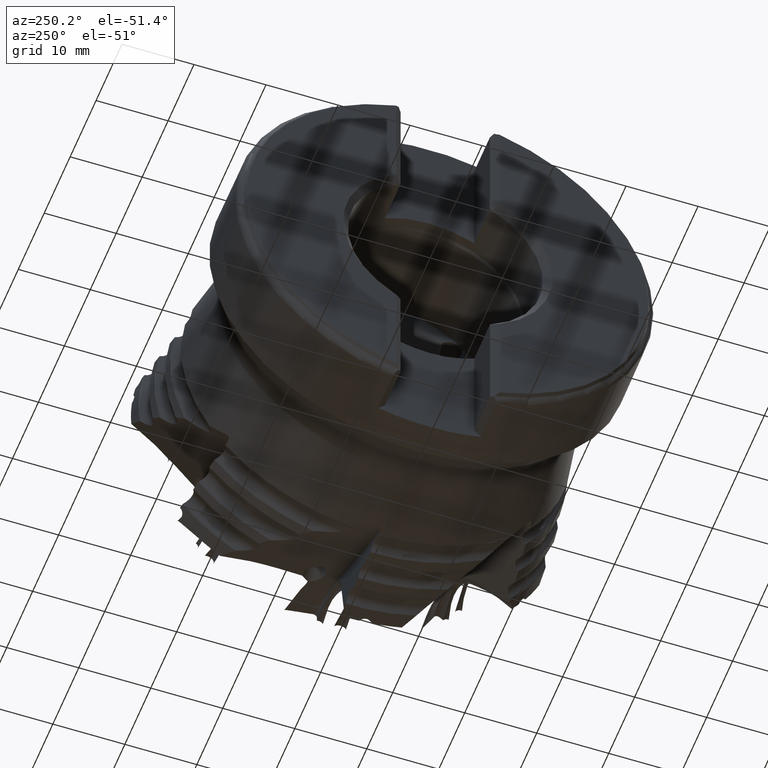
[diagram: clean part render]
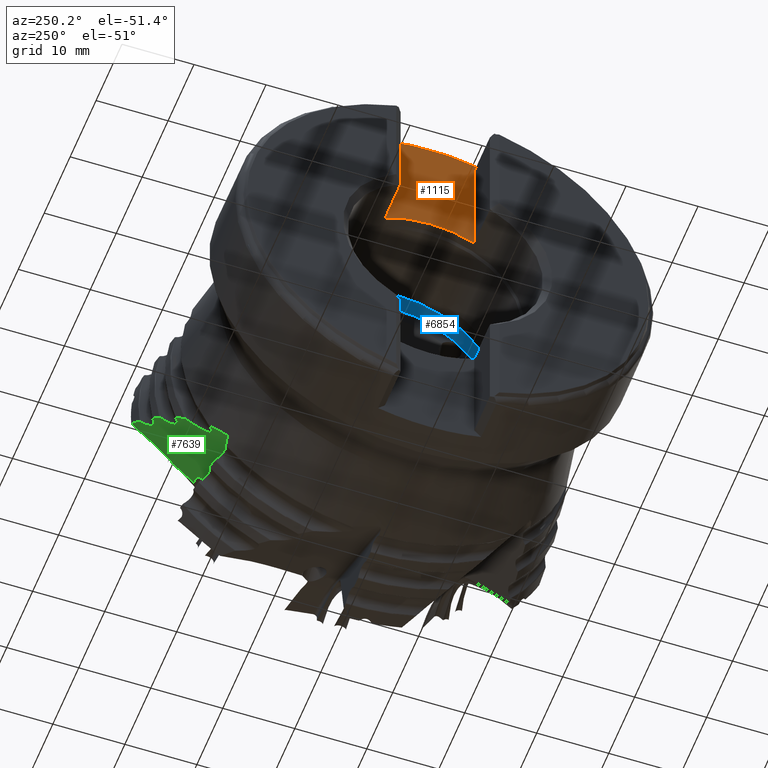
[diagram: same view with three faces highlighted in distinct colors, each labeled with its STEP entity id]
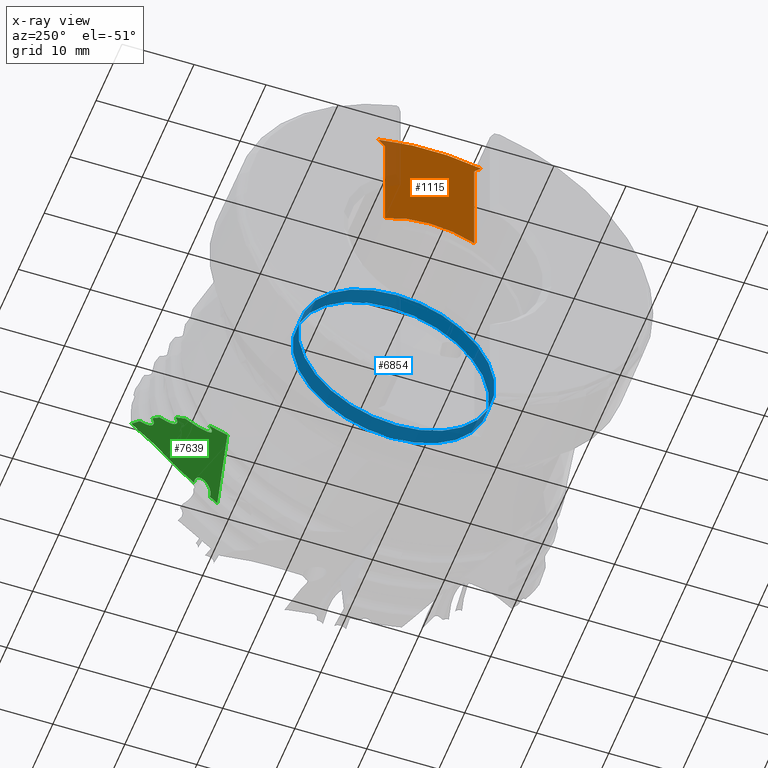
[diagram: x-ray of the same camera — body ghosted, the three highlighted faces saturated]
A machine part, auxiliary view with three faces highlighted in distinct colors.
The next image is the same camera in x-ray (body ghosted, the three faces saturated) — at least one of them is partly hidden behind the body in this view.
Their STEP definitions:

[orange] entity #1115 — the highlighted planar face has unit normal (1, 0, 0).
#80 = VECTOR ( 'NONE', #9487, 1000.000000000000000 ) ;
#189 = DIRECTION ( 'NONE',  ( -1.000000000000000000, -0.0000000000000000000, -0.0000000000000000000 ) ) ;
#214 = ORIENTED_EDGE ( 'NONE', *, *, #3618, .F. ) ;
#217 = CIRCLE ( 'NONE', #1855, 28.99999999999999600 ) ;
#557 = DIRECTION ( 'NONE',  ( 1.000000000000000000, 0.0000000000000000000, 0.0000000000000000000 ) ) ;
#803 = AXIS2_PLACEMENT_3D ( 'NONE', #1734, #9179, #2813 ) ;
#1075 = ORIENTED_EDGE ( 'NONE', *, *, #4829, .T. ) ;
#1115 = ADVANCED_FACE ( 'NONE', ( #4669 ), #11180, .F. ) ;
#1566 = LINE ( 'NONE', #12310, #6889 ) ;
#1734 = CARTESIAN_POINT ( 'NONE',  ( -41.99999999999999300, 0.0000000000000000000, 0.0000000000000000000 ) ) ;
#1855 = AXIS2_PLACEMENT_3D ( 'NONE', #6556, #189, #7601 ) ;
#2058 = EDGE_CURVE ( 'NONE', #8605, #5746, #8242, .T. ) ;
#2373 = CARTESIAN_POINT ( 'NONE',  ( -41.99999999999999300, -24.84998282029209100, -4.652229464850294400 ) ) ;
#2547 = CARTESIAN_POINT ( 'NONE',  ( -41.99999999999999300, -6.200000000000003700, 27.11621402010958100 ) ) ;
#2564 = LINE ( 'NONE', #8421, #80 ) ;
#2584 = VECTOR ( 'NONE', #5458, 1000.000000000000000 ) ;
#2688 = CARTESIAN_POINT ( 'NONE',  ( -41.99999999999999300, 6.199999999999994000, -35.00000000000000000 ) ) ;
#2813 = DIRECTION ( 'NONE',  ( 0.0000000000000000000, 1.776356839400250500E-015, -1.000000000000000000 ) ) ;
#2836 = VERTEX_POINT ( 'NONE', #6629 ) ;
#2889 = CIRCLE ( 'NONE', #803, 13.57499999999999400 ) ;
#3053 = VECTOR ( 'NONE', #13000, 1000.000000000000100 ) ;
#3388 = LINE ( 'NONE', #2373, #3053 ) ;
#3618 = EDGE_CURVE ( 'Kante69', #12735, #8605, #2889, .T. ) ;
#3959 = EDGE_CURVE ( 'NONE', #2836, #5746, #3388, .T. ) ;
#4669 = FACE_OUTER_BOUND ( 'NONE', #6364, .T. ) ;
#4829 = EDGE_CURVE ( 'Kante61', #10415, #2836, #217, .T. ) ;
#4937 = CARTESIAN_POINT ( 'NONE',  ( -41.99999999999999300, -7.162962588931217000, 28.10145844879891200 ) ) ;
#5458 = DIRECTION ( 'NONE',  ( -0.0000000000000000000, -0.0000000000000000000, 1.000000000000000000 ) ) ;
#5620 = ORIENTED_EDGE ( 'NONE', *, *, #3959, .T. ) ;
#5746 = VERTEX_POINT ( 'NONE', #6326 ) ;
#6326 = CARTESIAN_POINT ( 'NONE',  ( -41.99999999999999300, 6.199999999999994000, 27.11621402010955300 ) ) ;
#6364 = EDGE_LOOP ( 'NONE', ( #1075, #5620, #9628, #214, #7596, #7699 ) ) ;
#6556 = CARTESIAN_POINT ( 'NONE',  ( -41.99999999999999300, 0.0000000000000000000, 0.0000000000000000000 ) ) ;
#6629 = CARTESIAN_POINT ( 'NONE',  ( -41.99999999999999300, 7.162962588931238300, 28.10145844879890800 ) ) ;
#6813 = CARTESIAN_POINT ( 'NONE',  ( -41.99999999999999300, 6.199999999999994000, 12.07644918839970500 ) ) ;
#6889 = VECTOR ( 'NONE', #7037, 999.9999999999998900 ) ;
#7037 = DIRECTION ( 'NONE',  ( -0.0000000000000000000, -0.6989738158220552000, 0.7151472609156492900 ) ) ;
#7596 = ORIENTED_EDGE ( 'NONE', *, *, #12382, .T. ) ;
#7601 = DIRECTION ( 'NONE',  ( 0.0000000000000000000, 3.552713678800500900E-015, -1.000000000000000000 ) ) ;
#7699 = ORIENTED_EDGE ( 'NONE', *, *, #11618, .T. ) ;
#8242 = LINE ( 'NONE', #11778, #2584 ) ;
#8421 = CARTESIAN_POINT ( 'NONE',  ( -41.99999999999999300, -6.200000000000003700, -35.00000000000000000 ) ) ;
#8605 = VERTEX_POINT ( 'NONE', #6813 ) ;
#9179 = DIRECTION ( 'NONE',  ( -1.000000000000000000, -0.0000000000000000000, -0.0000000000000000000 ) ) ;
#9487 = DIRECTION ( 'NONE',  ( -0.0000000000000000000, -0.0000000000000000000, 1.000000000000000000 ) ) ;
#9628 = ORIENTED_EDGE ( 'NONE', *, *, #2058, .F. ) ;
#10415 = VERTEX_POINT ( 'NONE', #4937 ) ;
#11180 = PLANE ( 'NONE',  #11707 ) ;
#11618 = EDGE_CURVE ( 'NONE', #12994, #10415, #1566, .T. ) ;
#11687 = CARTESIAN_POINT ( 'NONE',  ( -41.99999999999999300, -6.200000000000003700, 12.07644918839970100 ) ) ;
#11707 = AXIS2_PLACEMENT_3D ( 'NONE', #2688, #557, #12232 ) ;
#11778 = CARTESIAN_POINT ( 'NONE',  ( -41.99999999999999300, 6.199999999999994000, -35.00000000000000000 ) ) ;
#12232 = DIRECTION ( 'NONE',  ( 0.0000000000000000000, 0.0000000000000000000, -1.000000000000000000 ) ) ;
#12310 = CARTESIAN_POINT ( 'NONE',  ( -41.99999999999999300, 30.90818132083214900, -10.85060766682807700 ) ) ;
#12382 = EDGE_CURVE ( 'NONE', #12735, #12994, #2564, .T. ) ;
#12735 = VERTEX_POINT ( 'NONE', #11687 ) ;
#12994 = VERTEX_POINT ( 'NONE', #2547 ) ;
#13000 = DIRECTION ( 'NONE',  ( 0.0000000000000000000, -0.6989738158220575300, -0.7151472609156468400 ) ) ;

[blue] entity #6854 — the highlighted cylindrical surface (bore or boss wall) has radius 13.65 mm, axis along (1, -0, -0).
#1432 = DIRECTION ( 'NONE',  ( 1.000000000000000000, -0.0000000000000000000, -0.0000000000000000000 ) ) ;
#1989 = FACE_OUTER_BOUND ( 'NONE', #11293, .T. ) ;
#3159 = CARTESIAN_POINT ( 'NONE',  ( -29.22115756940395000, 0.0000000000000000000, -13.64999999999999700 ) ) ;
#4500 = CYLINDRICAL_SURFACE ( 'NONE', #12018, 13.64999999999999700 ) ;
#4827 = FACE_OUTER_BOUND ( 'NONE', #6036, .T. ) ;
#4864 = CIRCLE ( 'NONE', #6845, 13.64999999999999700 ) ;
#4939 = EDGE_CURVE ( 'NONE', #10836, #10836, #4864, .T. ) ;
#4994 = CIRCLE ( 'NONE', #8670, 13.64999999999999700 ) ;
#5303 = CARTESIAN_POINT ( 'NONE',  ( -26.99999999999999600, 0.0000000000000000000, -13.64999999999999700 ) ) ;
#6036 = EDGE_LOOP ( 'NONE', ( #6518 ) ) ;
#6213 = DIRECTION ( 'NONE',  ( 1.000000000000000000, -0.0000000000000000000, -0.0000000000000000000 ) ) ;
#6235 = DIRECTION ( 'NONE',  ( 1.000000000000000000, -0.0000000000000000000, -0.0000000000000000000 ) ) ;
#6518 = ORIENTED_EDGE ( 'NONE', *, *, #7322, .T. ) ;
#6845 = AXIS2_PLACEMENT_3D ( 'NONE', #7779, #1432, #8874 ) ;
#6854 = ADVANCED_FACE ( 'NONE', ( #1989, #4827 ), #4500, .F. ) ;
#7322 = EDGE_CURVE ( 'NONE', #13332, #13332, #4994, .T. ) ;
#7779 = CARTESIAN_POINT ( 'NONE',  ( -29.22115756940395000, 0.0000000000000000000, 0.0000000000000000000 ) ) ;
#8670 = AXIS2_PLACEMENT_3D ( 'NONE', #12541, #6213, #13610 ) ;
#8874 = DIRECTION ( 'NONE',  ( 0.0000000000000000000, 0.0000000000000000000, -1.000000000000000000 ) ) ;
#10836 = VERTEX_POINT ( 'NONE', #3159 ) ;
#11293 = EDGE_LOOP ( 'NONE', ( #13644 ) ) ;
#12018 = AXIS2_PLACEMENT_3D ( 'NONE', #12556, #6235, #13627 ) ;
#12541 = CARTESIAN_POINT ( 'NONE',  ( -26.99999999999999600, 0.0000000000000000000, 0.0000000000000000000 ) ) ;
#12556 = CARTESIAN_POINT ( 'NONE',  ( 0.0000000000000000000, 0.0000000000000000000, 0.0000000000000000000 ) ) ;
#13332 = VERTEX_POINT ( 'NONE', #5303 ) ;
#13610 = DIRECTION ( 'NONE',  ( 0.0000000000000000000, 0.0000000000000000000, -1.000000000000000000 ) ) ;
#13627 = DIRECTION ( 'NONE',  ( 0.0000000000000000000, 0.0000000000000000000, -1.000000000000000000 ) ) ;
#13644 = ORIENTED_EDGE ( 'NONE', *, *, #4939, .F. ) ;

[green] entity #7639 — the highlighted planar face has unit normal (-0.3701, -0.6246, 0.6877).
#130 = CARTESIAN_POINT ( 'NONE',  ( -10.86009553787052800, 28.43497350777445500, -3.697997164315958200 ) ) ;
#140 = EDGE_CURVE ( 'NONE', #13264, #9629, #8511, .T. ) ;
#202 = ORIENTED_EDGE ( 'NONE', *, *, #140, .T. ) ;
#345 = CARTESIAN_POINT ( 'NONE',  ( -21.27273888934624700, 23.07157633735308600, -14.17396525253552800 ) ) ;
#511 = VECTOR ( 'NONE', #6868, 1000.000000000000000 ) ;
#535 = CARTESIAN_POINT ( 'NONE',  ( -14.74560819839790500, 27.21953894276878600, -6.893257324704725500 ) ) ;
#590 = CARTESIAN_POINT ( 'NONE',  ( -15.56343661477954900, 26.12395101056180700, -8.328574500846881900 ) ) ;
#595 = CARTESIAN_POINT ( 'NONE',  ( -10.16009508420915900, 19.10421677146630200, -11.79657905307113600 ) ) ;
#738 = VERTEX_POINT ( 'NONE', #3922 ) ;
#747 = CARTESIAN_POINT ( 'NONE',  ( -8.070730014023023800, 22.87436854218695400, -7.247531544520118300 ) ) ;
#773 = CARTESIAN_POINT ( 'NONE',  ( -19.24391201882954800, 23.70126172519837500, -12.51005631671221300 ) ) ;
#814 = CARTESIAN_POINT ( 'NONE',  ( -20.70381349785103700, 22.55136495840512000, -14.34027885369560500 ) ) ;
#828 =( BOUNDED_CURVE ( )  B_SPLINE_CURVE ( 3, ( #10256, #13422, #5971, #3909 ),
 .UNSPECIFIED., .F., .T. ) 
 B_SPLINE_CURVE_WITH_KNOTS ( ( 4, 4 ),
 ( 3.507895866193907700, 3.533637796000468300 ),
 .UNSPECIFIED. ) 
 CURVE ( )  GEOMETRIC_REPRESENTATION_ITEM ( )  RATIONAL_B_SPLINE_CURVE ( ( 1.000000000000000000, 0.9999447801831433700, 0.9999447801831433700, 1.000000000000000000 ) ) 
 REPRESENTATION_ITEM ( '' )  );
#1189 = CARTESIAN_POINT ( 'NONE',  ( -11.31691369532756000, 27.93721658735297100, -4.395988764565263600 ) ) ;
#1272 = CARTESIAN_POINT ( 'NONE',  ( -14.52432852026480600, 27.64114408707765600, -6.391207190147924600 ) ) ;
#1352 = DIRECTION ( 'NONE',  ( -0.9289711258367762100, 0.2444033877831371700, -0.2779921426977355300 ) ) ;
#1402 = CARTESIAN_POINT ( 'NONE',  ( -21.23225956640233400, 23.10124906513536300, -14.12522614078787200 ) ) ;
#1439 = EDGE_CURVE ( 'NONE', #738, #9205, #11216, .T. ) ;
#1508 = CARTESIAN_POINT ( 'NONE',  ( -10.67063467501735200, 28.83810332442495600, -3.229854049520093800 ) ) ;
#1554 = LINE ( 'NONE', #7718, #12512 ) ;
#1567 = CARTESIAN_POINT ( 'NONE',  ( -17.72775898459883200, 26.07040663055268200, -9.542087830566844200 ) ) ;
#1586 = CARTESIAN_POINT ( 'NONE',  ( -18.64336868488005500, 25.39358395131935400, -10.64965883775913900 ) ) ;
#1587 = B_SPLINE_CURVE_WITH_KNOTS ( 'NONE', 3,
 ( #2202, #5442, #130, #7549, #1189, #8630, #2249, #9702, #3328, #10740, #4400, #11802, #5481, #12877 ),
 .UNSPECIFIED., .F., .F.,
 ( 4, 2, 2, 2, 2, 2, 4 ),
 ( 8.157132255941114400E-007, 0.0009639929585721287900, 0.001927170203918663600, 0.002408758826591934200, 0.002890347449265205000, 0.003371936071938475900, 0.003853524694611746700 ),
 .UNSPECIFIED. ) ;
#1640 = CARTESIAN_POINT ( 'NONE',  ( -15.91063262564948400, 25.92368548708107300, -8.697347377296090100 ) ) ;
#1643 = CARTESIAN_POINT ( 'NONE',  ( -10.17147283110602300, 20.61869377130826200, -10.42706945423603800 ) ) ;
#1746 = CARTESIAN_POINT ( 'NONE',  ( -8.700061548274991500, 28.36712235250801900, -2.597058197102136900 ) ) ;
#1784 = VERTEX_POINT ( 'NONE', #1508 ) ;
#1815 = CARTESIAN_POINT ( 'NONE',  ( -19.60173341473347400, 23.12807853410225400, -13.22327742192166900 ) ) ;
#1864 = CARTESIAN_POINT ( 'NONE',  ( -20.85260339599461300, 22.66344033004023800, -14.31855972541741700 ) ) ;
#2128 = CARTESIAN_POINT ( 'NONE',  ( -14.67063467501735700, 27.46324937614622300, -6.631537573126843600 ) ) ;
#2202 = CARTESIAN_POINT ( 'NONE',  ( -10.67063467501735200, 28.83810332442495600, -3.229854049520093800 ) ) ;
#2249 = CARTESIAN_POINT ( 'NONE',  ( -11.74847941762970600, 27.71548341185816300, -4.829670506608110300 ) ) ;
#2459 = CARTESIAN_POINT ( 'NONE',  ( -21.19289753952197200, 23.10554418592550300, -14.10013942581642600 ) ) ;
#2498 = CARTESIAN_POINT ( 'NONE',  ( -21.79621176707710000, 22.41132811741158900, -15.05542611816287900 ) ) ;
#2509 = CARTESIAN_POINT ( 'NONE',  ( -8.036276616653669400, 18.28832190612817100, -11.39459676204624300 ) ) ;
#2559 = CARTESIAN_POINT ( 'NONE',  ( -9.323391583254798200, 29.29571790728401100, -2.089081692416955100 ) ) ;
#2658 = CARTESIAN_POINT ( 'NONE',  ( -18.56842842501214700, 25.52451941887289500, -10.49039301135303300 ) ) ;
#2720 = CARTESIAN_POINT ( 'NONE',  ( -16.27551109253209900, 25.84694613383243600, -8.963435692654034200 ) ) ;
#2721 = EDGE_CURVE ( 'NONE', #1784, #4366, #1587, .T. ) ;
#2722 = CARTESIAN_POINT ( 'NONE',  ( -13.17006851726025700, 28.10992487669671300, -5.236515688258121400 ) ) ;
#2723 = CARTESIAN_POINT ( 'NONE',  ( -8.052736960071317900, 20.47933667746171700, -9.413308329905051500 ) ) ;
#2772 = DIRECTION ( 'NONE',  ( 0.0000000000000000000, -0.7402231728078497700, -0.6723612529275315700 ) ) ;
#2820 = CARTESIAN_POINT ( 'NONE',  ( -8.698195910180126900, 27.28957385523242300, -3.574815461507758800 ) ) ;
#2850 = CARTESIAN_POINT ( 'NONE',  ( -18.84847627269794000, 24.63252867608981200, -11.45133499948023600 ) ) ;
#2855 =( BOUNDED_CURVE ( )  B_SPLINE_CURVE ( 3, ( #13295, #12218, #595, #8012, #1643, #9096, #2723 ),
 .UNSPECIFIED., .F., .T. ) 
 B_SPLINE_CURVE_WITH_KNOTS ( ( 4, 3, 4 ),
 ( 4.616353537245133900, 6.378079687763048800, 8.139805838280963700 ),
 .UNSPECIFIED. ) 
 CURVE ( )  GEOMETRIC_REPRESENTATION_ITEM ( )  RATIONAL_B_SPLINE_CURVE ( ( 1.000000000000000000, 0.7576571342113944700, 0.7576571342113944700, 1.000000000000000000, 0.7576571342113944700, 0.7576571342113944700, 1.000000000000000000 ) ) 
 REPRESENTATION_ITEM ( '' )  );
#2905 = CARTESIAN_POINT ( 'NONE',  ( -19.81717244961425800, 22.86612958274759300, -13.57716472714907100 ) ) ;
#2924 = CARTESIAN_POINT ( 'NONE',  ( -8.025082402013897100, 16.79827464484692000, -12.74201506371445400 ) ) ;
#2950 = CARTESIAN_POINT ( 'NONE',  ( -21.00557862382034500, 22.84160768961173500, -14.23906038801179200 ) ) ;
#3328 = CARTESIAN_POINT ( 'NONE',  ( -12.13840743047699400, 27.63397997548191000, -5.113568267649371900 ) ) ;
#3345 = LINE ( 'NONE', #5818, #511 ) ;
#3433 = B_SPLINE_CURVE_WITH_KNOTS ( 'NONE', 3,
 ( #7960, #535, #4809, #12214, #5895, #13288, #6936, #590, #8006, #1640, #9092, #2720, #10137, #3783, #11210, #4856, #12258, #5941, #13346, #6978 ),
 .UNSPECIFIED., .F., .F.,
 ( 4, 2, 2, 2, 2, 2, 2, 2, 2, 4 ),
 ( 9.611235609117997500E-007, 0.001081459051526843900, 0.001621708015509808000, 0.002161956979492773800, 0.002702205943475737300, 0.003242454907458700300, 0.003512579389450185700, 0.003782703871441671500, 0.004052828353433156500, 0.004322952835424642400 ),
 .UNSPECIFIED. ) ;
#3462 = ORIENTED_EDGE ( 'NONE', *, *, #7164, .T. ) ;
#3464 = EDGE_CURVE ( 'Kante72', #13442, #8038, #8836, .T. ) ;
#3484 = CARTESIAN_POINT ( 'NONE',  ( -21.11411155307469700, 23.03418228389732600, -14.12255498165851700 ) ) ;
#3528 = CARTESIAN_POINT ( 'NONE',  ( -21.16091687335874000, 23.09259153931584400, -14.09469202644687900 ) ) ;
#3540 = LINE ( 'NONE', #2924, #8878 ) ;
#3597 = CARTESIAN_POINT ( 'NONE',  ( -17.23996424805477900, 26.33984221772702800, -9.034813440801734400 ) ) ;
#3633 = CARTESIAN_POINT ( 'NONE',  ( -18.67063467501743900, 25.29617975315047900, -10.75280830125341300 ) ) ;
#3783 = CARTESIAN_POINT ( 'NONE',  ( -16.52754348558893600, 25.87107696033849200, -9.077165554114433400 ) ) ;
#3785 = CARTESIAN_POINT ( 'NONE',  ( -13.11411155307485800, 28.06410165123183400, -5.248020889490465600 ) ) ;
#3890 = CARTESIAN_POINT ( 'NONE',  ( -8.690551606012990100, 26.47972320350310900, -4.306306605894899800 ) ) ;
#3909 = CARTESIAN_POINT ( 'NONE',  ( -13.29360231539657800, 28.11027717039311800, -5.302683835198029000 ) ) ;
#3922 = CARTESIAN_POINT ( 'NONE',  ( -17.29360231540805900, 26.31604722645916900, -9.085295949328980200 ) ) ;
#3962 = CARTESIAN_POINT ( 'NONE',  ( -20.00374536170919600, 22.68651987115085300, -13.84072518675584000 ) ) ;
#4003 = CARTESIAN_POINT ( 'NONE',  ( -21.11411155307469700, 23.03418228389732600, -14.12255498165851700 ) ) ;
#4011 = B_SPLINE_CURVE_WITH_KNOTS ( 'NONE', 3,
 ( #5898, #12217, #9094, #2722, #10141, #3785 ),
 .UNSPECIFIED., .F., .F.,
 ( 4, 2, 4 ),
 ( 2.714610205043199900E-007, 0.0001070338763430733600, 0.0002137962916656423900 ),
 .UNSPECIFIED. ) ;
#4222 = EDGE_CURVE ( 'NONE', #9193, #9693, #828, .T. ) ;
#4277 = CARTESIAN_POINT ( 'NONE',  ( -14.64175207271855700, 27.53589354651625600, -6.550008106155745600 ) ) ;
#4366 = VERTEX_POINT ( 'NONE', #12013 ) ;
#4400 = CARTESIAN_POINT ( 'NONE',  ( -12.58929686865636700, 27.69605752780815800, -5.299858758342156600 ) ) ;
#4403 = VERTEX_POINT ( 'NONE', #13079 ) ;
#4452 = ORIENTED_EDGE ( 'NONE', *, *, #1439, .T. ) ;
#4476 =( BOUNDED_CURVE ( )  B_SPLINE_CURVE ( 3, ( #5773, #12092, #1567, #9015 ),
 .UNSPECIFIED., .F., .F. ) 
 B_SPLINE_CURVE_WITH_KNOTS ( ( 4, 4 ),
 ( 3.408369816640021400, 3.442400909766030200 ),
 .UNSPECIFIED. ) 
 CURVE ( )  GEOMETRIC_REPRESENTATION_ITEM ( )  RATIONAL_B_SPLINE_CURVE ( ( 1.000000000000000000, 0.9999034927202243800, 0.9999034927202243800, 1.000000000000000000 ) ) 
 REPRESENTATION_ITEM ( '' )  );
#4505 = CARTESIAN_POINT ( 'NONE',  ( -22.19403262101808100, 21.74335254381649600, -15.87627770097361000 ) ) ;
#4530 = CARTESIAN_POINT ( 'NONE',  ( -18.67063467501743900, 25.29617975315047900, -10.75280830125341300 ) ) ;
#4562 = CARTESIAN_POINT ( 'NONE',  ( -21.28369750942650300, 23.05967928804899000, -14.19066973752642000 ) ) ;
#4610 = CARTESIAN_POINT ( 'NONE',  ( -21.12341982389760600, 23.05205268485224600, -14.11133277816373000 ) ) ;
#4629 = CARTESIAN_POINT ( 'NONE',  ( -17.29360231540805900, 26.31604722645916900, -9.085295949328980200 ) ) ;
#4671 = CARTESIAN_POINT ( 'NONE',  ( -17.17023855270592100, 26.32647808237528900, -9.009424742748724000 ) ) ;
#4809 = CARTESIAN_POINT ( 'NONE',  ( -14.84945598793205700, 26.99307615782684900, -7.154851308354174000 ) ) ;
#4856 = CARTESIAN_POINT ( 'NONE',  ( -16.78135653003527500, 25.97463293141810700, -9.119710160544530100 ) ) ;
#4898 = CARTESIAN_POINT ( 'NONE',  ( -10.64092193515466500, 28.89901744779541900, -3.158532451245323400 ) ) ;
#4961 = CARTESIAN_POINT ( 'NONE',  ( -8.621314371711012100, 25.65933937530186500, -5.014214831566800300 ) ) ;
#5040 = CARTESIAN_POINT ( 'NONE',  ( -20.22636006282169800, 22.53989280814520100, -14.09372511762007300 ) ) ;
#5313 = CARTESIAN_POINT ( 'NONE',  ( -8.070730014023023800, 22.87436854218695400, -7.247531544520118300 ) ) ;
#5351 = ORIENTED_EDGE ( 'NONE', *, *, #10903, .T. ) ;
#5364 = CARTESIAN_POINT ( 'NONE',  ( -14.56444899509330400, 27.62484350519884300, -6.427606944284086400 ) ) ;
#5442 = CARTESIAN_POINT ( 'NONE',  ( -10.74938148570689100, 28.62636230702620200, -3.464566118048816500 ) ) ;
#5481 = CARTESIAN_POINT ( 'NONE',  ( -13.00924647846792800, 27.94746367601450000, -5.297525473715932500 ) ) ;
#5553 = ORIENTED_EDGE ( 'NONE', *, *, #13112, .T. ) ;
#5599 = B_SPLINE_CURVE_WITH_KNOTS ( 'NONE', 3,
 ( #7045, #13403, #1746, #9194, #2820, #10238, #3890, #11302, #4961, #12374, #6040, #13444, #7083, #747 ),
 .UNSPECIFIED., .F., .F.,
 ( 4, 2, 2, 2, 2, 2, 4 ),
 ( 0.0004838159047236676300, 0.002665281871346980100, 0.003756014854658636600, 0.004846747837970292300, 0.005937480821281948900, 0.007028213804593604600, 0.009209679771216916800 ),
 .UNSPECIFIED. ) ;
#5757 = CARTESIAN_POINT ( 'NONE',  ( -17.12490893987176200, 26.29287624373854000, -9.015548819479199900 ) ) ;
#5773 = CARTESIAN_POINT ( 'NONE',  ( -18.52432852026481000, 25.55443865050343200, -10.43948133149115500 ) ) ;
#5818 = CARTESIAN_POINT ( 'NONE',  ( -8.025082402013897100, 16.79827464484692000, -12.74201506371445400 ) ) ;
#5895 = CARTESIAN_POINT ( 'NONE',  ( -15.11776855462621100, 26.57635931741260600, -7.677775245636832200 ) ) ;
#5898 = CARTESIAN_POINT ( 'NONE',  ( -13.29360231539657800, 28.11027717039311800, -5.302683835198029000 ) ) ;
#5941 = CARTESIAN_POINT ( 'NONE',  ( -16.99942955219714200, 26.14482891474649800, -9.082488222524121500 ) ) ;
#5971 = CARTESIAN_POINT ( 'NONE',  ( -13.71708511945809100, 27.95881922214270800, -5.668182643566943600 ) ) ;
#5974 = CARTESIAN_POINT ( 'NONE',  ( -10.56275272004776900, 28.96844454777475500, -3.053398167308839300 ) ) ;
#6040 = CARTESIAN_POINT ( 'NONE',  ( -8.481769296413153500, 24.82788413226170500, -5.694338508493749500 ) ) ;
#6117 = CARTESIAN_POINT ( 'NONE',  ( -20.42058900137529800, 22.49113029747902500, -14.24255475306749800 ) ) ;
#6272 = FACE_OUTER_BOUND ( 'NONE', #10666, .T. ) ;
#6327 = B_SPLINE_CURVE_WITH_KNOTS ( 'NONE', 3,
 ( #11965, #4562, #345, #7752, #1402, #8840, #2459, #9903, #3528, #10948, #4610, #12014 ),
 .UNSPECIFIED., .F., .F.,
 ( 4, 2, 2, 2, 2, 4 ),
 ( -0.001361330180132833600, -0.001293126061825733700, -0.001224921943518633800, -0.001190819884365087100, -0.001156717825211540600, -0.001088513706904446600 ),
 .UNSPECIFIED. ) ;
#6386 = CARTESIAN_POINT ( 'NONE',  ( -8.028402720822269200, 17.24023793626150400, -12.34235698373820800 ) ) ;
#6474 = ORIENTED_EDGE ( 'NONE', *, *, #8047, .T. ) ;
#6599 = EDGE_CURVE ( 'NONE', #13218, #12024, #8114, .T. ) ;
#6634 = EDGE_CURVE ( 'NONE', #12682, #11077, #3345, .T. ) ;
#6868 = DIRECTION ( 'NONE',  ( 0.005572156574990965400, -0.7417024696397469500, -0.6707058950101780800 ) ) ;
#6898 = PLANE ( 'NONE',  #9117 ) ;
#6936 = CARTESIAN_POINT ( 'NONE',  ( -15.36728484291172900, 26.29161519433576500, -8.070708914131524000 ) ) ;
#6966 = CARTESIAN_POINT ( 'NONE',  ( -10.67063467501735200, 28.83810332442495600, -3.229854049520093800 ) ) ;
#6978 = CARTESIAN_POINT ( 'NONE',  ( -17.11411155307474600, 26.27907765684992800, -9.022271033870669800 ) ) ;
#7045 = CARTESIAN_POINT ( 'NONE',  ( -8.693566860730255600, 29.44242002387760600, -1.616845728440530200 ) ) ;
#7083 = CARTESIAN_POINT ( 'NONE',  ( -8.181294415081328700, 23.43143318153255400, -6.801045058530463400 ) ) ;
#7106 = CARTESIAN_POINT ( 'NONE',  ( -19.09792562226934700, 24.00461079283119800, -12.15594503714469400 ) ) ;
#7118 = DIRECTION ( 'NONE',  ( 0.005572156574990965400, -0.7417024696397469500, -0.6707058950101780800 ) ) ;
#7150 = CARTESIAN_POINT ( 'NONE',  ( -20.59066380834252600, 22.50525451039724300, -14.32126277772810500 ) ) ;
#7164 = EDGE_CURVE ( 'NONE', #9693, #4366, #4011, .T. ) ;
#7379 = ORIENTED_EDGE ( 'NONE', *, *, #9308, .T. ) ;
#7549 = CARTESIAN_POINT ( 'NONE',  ( -11.14292448901834300, 28.09128728441873300, -4.162398742647892100 ) ) ;
#7599 = EDGE_CURVE ( 'NONE', #9028, #9205, #3433, .T. ) ;
#7639 = ADVANCED_FACE ( 'NONE', ( #6272 ), #6898, .F. ) ;
#7718 = CARTESIAN_POINT ( 'NONE',  ( -22.64465753619404600, 21.08563430459396300, -16.71623242650974100 ) ) ;
#7752 = CARTESIAN_POINT ( 'NONE',  ( -21.24694580663566500, 23.09211869591445100, -14.14142386157097100 ) ) ;
#7786 = CARTESIAN_POINT ( 'NONE',  ( -22.48657542663967500, 21.04404441869929700, -16.66892677498305300 ) ) ;
#7836 = ORIENTED_EDGE ( 'NONE', *, *, #6634, .T. ) ;
#7960 = CARTESIAN_POINT ( 'NONE',  ( -14.67063467501735700, 27.46324937614622300, -6.631537573126843600 ) ) ;
#8006 = CARTESIAN_POINT ( 'NONE',  ( -15.67000441327476200, 26.04833225820237500, -8.454617436548423000 ) ) ;
#8012 = CARTESIAN_POINT ( 'NONE',  ( -10.16578395765759200, 19.86145527138728200, -11.11182425365358700 ) ) ;
#8038 = VERTEX_POINT ( 'NONE', #3484 ) ;
#8047 = EDGE_CURVE ( 'NONE', #12024, #8038, #6327, .T. ) ;
#8066 = CARTESIAN_POINT ( 'NONE',  ( -8.025082402013895300, 16.79827464484692400, -12.74201506371445600 ) ) ;
#8114 =( BOUNDED_CURVE ( )  B_SPLINE_CURVE ( 3, ( #7786, #4505, #2498, #9938 ),
 .UNSPECIFIED., .F., .T. ) 
 B_SPLINE_CURVE_WITH_KNOTS ( ( 4, 4 ),
 ( 3.238574205376581800, 3.308729897366858600 ),
 .UNSPECIFIED. ) 
 CURVE ( )  GEOMETRIC_REPRESENTATION_ITEM ( )  RATIONAL_B_SPLINE_CURVE ( ( 1.000000000000000000, 0.9995898902945052900, 0.9995898902945052900, 1.000000000000000000 ) ) 
 REPRESENTATION_ITEM ( '' )  );
#8205 = CARTESIAN_POINT ( 'NONE',  ( -19.50691781297624800, 23.26820776628979800, -13.04496342211118600 ) ) ;
#8253 = CARTESIAN_POINT ( 'NONE',  ( -20.75780179512733200, 22.58557259155846700, -14.33826478215002500 ) ) ;
#8511 =( BOUNDED_CURVE ( )  B_SPLINE_CURVE ( 3, ( #11137, #9985, #2559, #11314 ),
 .UNSPECIFIED., .F., .T. ) 
 B_SPLINE_CURVE_WITH_KNOTS ( ( 4, 4 ),
 ( 3.586408192313739200, 3.618287300957812000 ),
 .UNSPECIFIED. ) 
 CURVE ( )  GEOMETRIC_REPRESENTATION_ITEM ( )  RATIONAL_B_SPLINE_CURVE ( ( 1.000000000000000000, 0.9999153119957467900, 0.9999153119957467900, 1.000000000000000000 ) ) 
 REPRESENTATION_ITEM ( '' )  );
#8513 = CARTESIAN_POINT ( 'NONE',  ( -14.65915388665462300, 27.50056905623106800, -6.591460103871990700 ) ) ;
#8630 = CARTESIAN_POINT ( 'NONE',  ( -11.63264169878907200, 27.76398180615467500, -4.723272358119004400 ) ) ;
#8754 = CARTESIAN_POINT ( 'NONE',  ( -13.29360231539657800, 28.11027717039311800, -5.302683835198029000 ) ) ;
#8762 = CARTESIAN_POINT ( 'NONE',  ( -21.29360231539651900, 23.04714930968728500, -14.20738194415351300 ) ) ;
#8836 = B_SPLINE_CURVE_WITH_KNOTS ( 'NONE', 3,
 ( #13474, #10269, #2850, #7106, #773, #8205, #1815, #9276, #2905, #10310, #3962, #11384, #5040, #12442, #6117, #13530, #7150, #814, #8253, #1864, #9316, #2950, #10366, #4003 ),
 .UNSPECIFIED., .F., .F.,
 ( 4, 2, 2, 2, 2, 2, 2, 2, 2, 2, 2, 4 ),
 ( 1.301599700656205700E-006, 0.001465602966607031500, 0.002929904333513407100, 0.003662055016966589200, 0.004028130358693183200, 0.004394205700419778600, 0.004760281042146372200, 0.004943318713009670800, 0.005126356383872970200, 0.005309394054736268700, 0.005492431725599567300, 0.005858507067326171300 ),
 .UNSPECIFIED. ) ;
#8840 = CARTESIAN_POINT ( 'NONE',  ( -21.20358887091848400, 23.10586899378349600, -14.10559866512623900 ) ) ;
#8878 = VECTOR ( 'NONE', #7118, 1000.000000000000000 ) ;
#8942 = ORIENTED_EDGE ( 'NONE', *, *, #3464, .F. ) ;
#9015 = CARTESIAN_POINT ( 'NONE',  ( -17.29360231540805900, 26.31604722645916900, -9.085295949328980200 ) ) ;
#9028 = VERTEX_POINT ( 'NONE', #9425 ) ;
#9033 = ORIENTED_EDGE ( 'NONE', *, *, #2721, .F. ) ;
#9037 = CARTESIAN_POINT ( 'NONE',  ( -18.59746214619755400, 25.48205214561150100, -10.54459346312364900 ) ) ;
#9050 = B_SPLINE_CURVE_WITH_KNOTS ( 'NONE', 3,
 ( #3633, #13241, #1586, #9037, #2658, #10093 ),
 .UNSPECIFIED., .F., .F.,
 ( 4, 2, 4 ),
 ( 0.0006444170032440139900, 0.0008650417975709007000, 0.001085666591897787400 ),
 .UNSPECIFIED. ) ;
#9092 = CARTESIAN_POINT ( 'NONE',  ( -16.04674286883819800, 25.87352096173304600, -8.816169952196185400 ) ) ;
#9094 = CARTESIAN_POINT ( 'NONE',  ( -13.23690417512579200, 28.12411494157074500, -5.259598705183009300 ) ) ;
#9096 = CARTESIAN_POINT ( 'NONE',  ( -9.241832011543827700, 20.89053238984889300, -9.679802717056635000 ) ) ;
#9117 = AXIS2_PLACEMENT_3D ( 'NONE', #8066, #9132, #2772 ) ;
#9132 = DIRECTION ( 'NONE',  ( -0.3701102517259640700, -0.6246154261386969200, 0.6876583243129670300 ) ) ;
#9193 = VERTEX_POINT ( 'NONE', #1272 ) ;
#9194 = CARTESIAN_POINT ( 'NONE',  ( -8.698699575915950900, 27.55897096378543400, -3.330387128476176400 ) ) ;
#9205 = VERTEX_POINT ( 'NONE', #9781 ) ;
#9276 = CARTESIAN_POINT ( 'NONE',  ( -19.76111364083373800, 22.93010860605865600, -13.48887927695946400 ) ) ;
#9308 = EDGE_CURVE ( 'NONE', #13442, #4403, #9050, .T. ) ;
#9316 = CARTESIAN_POINT ( 'NONE',  ( -20.89430678174896300, 22.70712140086178400, -14.30132875525811200 ) ) ;
#9425 = CARTESIAN_POINT ( 'NONE',  ( -14.67063467501735700, 27.46324937614622300, -6.631537573126843600 ) ) ;
#9556 = ORIENTED_EDGE ( 'NONE', *, *, #12216, .T. ) ;
#9629 = VERTEX_POINT ( 'NONE', #9723 ) ;
#9693 = VERTEX_POINT ( 'NONE', #8754 ) ;
#9702 = CARTESIAN_POINT ( 'NONE',  ( -11.99965733508167500, 27.65084495574188800, -5.023571597242602500 ) ) ;
#9723 = CARTESIAN_POINT ( 'NONE',  ( -8.693566860730255600, 29.44242002387760600, -1.616845728440530200 ) ) ;
#9781 = CARTESIAN_POINT ( 'NONE',  ( -17.11411155307474600, 26.27907765684992800, -9.022271033870669800 ) ) ;
#9903 = CARTESIAN_POINT ( 'NONE',  ( -21.17137385321043700, 23.09892437668050700, -14.09456790599203800 ) ) ;
#9938 = CARTESIAN_POINT ( 'NONE',  ( -21.29360231539651900, 23.04714930968728500, -14.20738194415351300 ) ) ;
#9985 = CARTESIAN_POINT ( 'NONE',  ( -9.933697155327170200, 29.14123106833913800, -2.557883130939377900 ) ) ;
#10027 = ORIENTED_EDGE ( 'NONE', *, *, #11589, .F. ) ;
#10093 = CARTESIAN_POINT ( 'NONE',  ( -18.52432852026481000, 25.55443865050343200, -10.43948133149115500 ) ) ;
#10137 = CARTESIAN_POINT ( 'NONE',  ( -16.35819540836067500, 25.84643577988692800, -9.008401465333582400 ) ) ;
#10141 = CARTESIAN_POINT ( 'NONE',  ( -13.13711273446906000, 28.08968510920830400, -5.237162518107072500 ) ) ;
#10179 = ORIENTED_EDGE ( 'NONE', *, *, #4222, .T. ) ;
#10224 = EDGE_CURVE ( 'NONE', #12425, #13218, #1554, .T. ) ;
#10238 = CARTESIAN_POINT ( 'NONE',  ( -8.696973066413622900, 26.75072188332294600, -4.063608594902147400 ) ) ;
#10256 = CARTESIAN_POINT ( 'NONE',  ( -14.52432852026480600, 27.64114408707765600, -6.391207190147924600 ) ) ;
#10269 = CARTESIAN_POINT ( 'NONE',  ( -18.74566037139142700, 24.95742037888008700, -11.10089121078324800 ) ) ;
#10310 = CARTESIAN_POINT ( 'NONE',  ( -19.93845121534151900, 22.74445469311357800, -13.75295919262323900 ) ) ;
#10366 = CARTESIAN_POINT ( 'NONE',  ( -21.06389948805710700, 22.93778309743942100, -14.18309146821537100 ) ) ;
#10425 = B_SPLINE_CURVE_WITH_KNOTS ( 'NONE', 3,
 ( #2128, #8513, #4277, #11693, #5364, #12750 ),
 .UNSPECIFIED., .F., .F.,
 ( 4, 2, 4 ),
 ( 0.0005095126054451767900, 0.0006793662589068056500, 0.0008492199123684345100 ),
 .UNSPECIFIED. ) ;
#10482 = ORIENTED_EDGE ( 'NONE', *, *, #10640, .T. ) ;
#10613 = ORIENTED_EDGE ( 'NONE', *, *, #6599, .T. ) ;
#10640 = EDGE_CURVE ( 'NONE', #9028, #9193, #10425, .T. ) ;
#10666 = EDGE_LOOP ( 'NONE', ( #202, #5553, #7836, #10027, #13361, #12228, #10613, #6474, #8942, #7379, #5351, #4452, #11973, #10482, #10179, #3462, #9033, #9556 ) ) ;
#10740 = CARTESIAN_POINT ( 'NONE',  ( -12.43162249572827500, 27.65535878637743000, -5.251963111669095200 ) ) ;
#10903 = EDGE_CURVE ( 'NONE', #4403, #738, #4476, .T. ) ;
#10948 = CARTESIAN_POINT ( 'NONE',  ( -21.13503863721708600, 23.07040231358232100, -14.10091885748088800 ) ) ;
#11024 = CARTESIAN_POINT ( 'NONE',  ( -17.18835364976704100, 26.33301602210106700, -9.013236061586543000 ) ) ;
#11077 = VERTEX_POINT ( 'NONE', #12595 ) ;
#11137 = CARTESIAN_POINT ( 'NONE',  ( -10.52432852026478600, 28.97899875658924200, -3.023130938433134000 ) ) ;
#11210 = CARTESIAN_POINT ( 'NONE',  ( -16.61572645535018500, 25.89700119775204700, -9.101079672442487800 ) ) ;
#11216 = B_SPLINE_CURVE_WITH_KNOTS ( 'NONE', 3,
 ( #4629, #13102, #3597, #11024, #4671, #12080, #5757, #13150 ),
 .UNSPECIFIED., .F., .F.,
 ( 4, 2, 2, 4 ),
 ( -0.0008350540996102693600, -0.0007236211607578240700, -0.0006679046913316060900, -0.0006121882219053882200 ),
 .UNSPECIFIED. ) ;
#11302 = CARTESIAN_POINT ( 'NONE',  ( -8.651971233835777000, 25.93399392923528500, -4.781240043618159200 ) ) ;
#11314 = CARTESIAN_POINT ( 'NONE',  ( -8.693566860730255600, 29.44242002387760600, -1.616845728440530200 ) ) ;
#11384 = CARTESIAN_POINT ( 'NONE',  ( -20.14782769904733700, 22.58497958431134500, -14.01050424060883700 ) ) ;
#11482 = CARTESIAN_POINT ( 'NONE',  ( -22.48657542663967500, 21.04404441869929700, -16.66892677498305300 ) ) ;
#11589 = EDGE_CURVE ( 'NONE', #12091, #11077, #2855, .T. ) ;
#11693 = CARTESIAN_POINT ( 'NONE',  ( -14.59446815072044300, 27.59743804740780200, -6.468656791198459800 ) ) ;
#11802 = CARTESIAN_POINT ( 'NONE',  ( -12.87988775726931800, 27.84351657431441800, -5.322319726552975400 ) ) ;
#11965 = CARTESIAN_POINT ( 'NONE',  ( -21.29360231539651900, 23.04714930968728500, -14.20738194415351300 ) ) ;
#11973 = ORIENTED_EDGE ( 'NONE', *, *, #7599, .F. ) ;
#12013 = CARTESIAN_POINT ( 'NONE',  ( -13.11411155307485800, 28.06410165123183400, -5.248020889490465600 ) ) ;
#12014 = CARTESIAN_POINT ( 'NONE',  ( -21.11411155307469700, 23.03418228389732600, -14.12255498165851700 ) ) ;
#12024 = VERTEX_POINT ( 'NONE', #8762 ) ;
#12080 = CARTESIAN_POINT ( 'NONE',  ( -17.13827758915729800, 26.30605772033100100, -9.010771040529292000 ) ) ;
#12091 = VERTEX_POINT ( 'NONE', #2509 ) ;
#12092 = CARTESIAN_POINT ( 'NONE',  ( -18.13804064805293900, 25.81651260261255500, -9.993526525074900100 ) ) ;
#12214 = CARTESIAN_POINT ( 'NONE',  ( -15.04552760027046300, 26.67745459188963500, -7.547066749030742400 ) ) ;
#12216 = EDGE_CURVE ( 'NONE', #1784, #13264, #13572, .T. ) ;
#12217 = CARTESIAN_POINT ( 'NONE',  ( -13.26737442757414900, 28.11965753260908600, -5.280047114959661100 ) ) ;
#12218 = CARTESIAN_POINT ( 'NONE',  ( -9.223212491433903500, 18.41211243463391900, -11.92098559336678300 ) ) ;
#12228 = ORIENTED_EDGE ( 'NONE', *, *, #10224, .T. ) ;
#12258 = CARTESIAN_POINT ( 'NONE',  ( -16.86031935313924600, 26.02686290360254200, -9.114767740919800700 ) ) ;
#12288 = CARTESIAN_POINT ( 'NONE',  ( -10.59271189604207000, 28.94816984671244600, -3.087938706371388300 ) ) ;
#12374 = CARTESIAN_POINT ( 'NONE',  ( -8.537005265981330000, 25.10640917191936300, -5.471076995753054300 ) ) ;
#12425 = VERTEX_POINT ( 'NONE', #6386 ) ;
#12442 = CARTESIAN_POINT ( 'NONE',  ( -20.36935942734934800, 22.49944966894173600, -14.20742539094702800 ) ) ;
#12512 = VECTOR ( 'NONE', #1352, 1000.000000000000000 ) ;
#12595 = CARTESIAN_POINT ( 'NONE',  ( -8.052736960071317900, 20.47933667746171700, -9.413308329905051500 ) ) ;
#12636 = CARTESIAN_POINT ( 'NONE',  ( -10.52432852026478600, 28.97899875658924200, -3.023130938433134000 ) ) ;
#12682 = VERTEX_POINT ( 'NONE', #5313 ) ;
#12750 = CARTESIAN_POINT ( 'NONE',  ( -14.52432852026480600, 27.64114408707765600, -6.391207190147924600 ) ) ;
#12877 = CARTESIAN_POINT ( 'NONE',  ( -13.11411155307485800, 28.06410165123183400, -5.248020889490465600 ) ) ;
#13079 = CARTESIAN_POINT ( 'NONE',  ( -18.52432852026481000, 25.55443865050343200, -10.43948133149115500 ) ) ;
#13102 = CARTESIAN_POINT ( 'NONE',  ( -17.26955833410821500, 26.32965102047006000, -9.059998409912191500 ) ) ;
#13112 = EDGE_CURVE ( 'NONE', #9629, #12682, #5599, .T. ) ;
#13150 = CARTESIAN_POINT ( 'NONE',  ( -17.11411155307474600, 26.27907765684992800, -9.022271033870669800 ) ) ;
#13196 = EDGE_CURVE ( 'NONE', #12091, #12425, #3540, .T. ) ;
#13218 = VERTEX_POINT ( 'NONE', #11482 ) ;
#13241 = CARTESIAN_POINT ( 'NONE',  ( -18.65957528585264000, 25.34611560092416500, -10.70149808963090600 ) ) ;
#13264 = VERTEX_POINT ( 'NONE', #12636 ) ;
#13288 = CARTESIAN_POINT ( 'NONE',  ( -15.27833271685370400, 26.38377528289665000, -7.939122189217313200 ) ) ;
#13295 = CARTESIAN_POINT ( 'NONE',  ( -8.036276616653669400, 18.28832190612817100, -11.39459676204624300 ) ) ;
#13328 = CARTESIAN_POINT ( 'NONE',  ( -10.65863265582137500, 28.87037535846852900, -3.194080934046043700 ) ) ;
#13346 = CARTESIAN_POINT ( 'NONE',  ( -17.06052983096048700, 26.21060256544302500, -9.055629829842931900 ) ) ;
#13361 = ORIENTED_EDGE ( 'NONE', *, *, #13196, .T. ) ;
#13382 = CARTESIAN_POINT ( 'NONE',  ( -10.52432852026478600, 28.97899875658924200, -3.023130938433134000 ) ) ;
#13403 = CARTESIAN_POINT ( 'NONE',  ( -8.697340828443366000, 28.90495039998323500, -2.107072619305970600 ) ) ;
#13422 = CARTESIAN_POINT ( 'NONE',  ( -14.12734984249039600, 27.80243289207971800, -6.031043799010129500 ) ) ;
#13442 = VERTEX_POINT ( 'NONE', #4530 ) ;
#13444 = CARTESIAN_POINT ( 'NONE',  ( -8.299500152092793600, 23.98970110630212500, -6.357578307868466000 ) ) ;
#13474 = CARTESIAN_POINT ( 'NONE',  ( -18.67063467501743900, 25.29617975315047900, -10.75280830125341300 ) ) ;
#13530 = CARTESIAN_POINT ( 'NONE',  ( -20.53135822167126500, 22.49355315392522300, -14.29997203298636100 ) ) ;
#13572 = B_SPLINE_CURVE_WITH_KNOTS ( 'NONE', 3,
 ( #6966, #13328, #4898, #12288, #5974, #13382 ),
 .UNSPECIFIED., .F., .F.,
 ( 4, 2, 4 ),
 ( 8.178251539520902400E-007, 0.0001476390757366679100, 0.0002944603263193837000 ),
 .UNSPECIFIED. ) ;